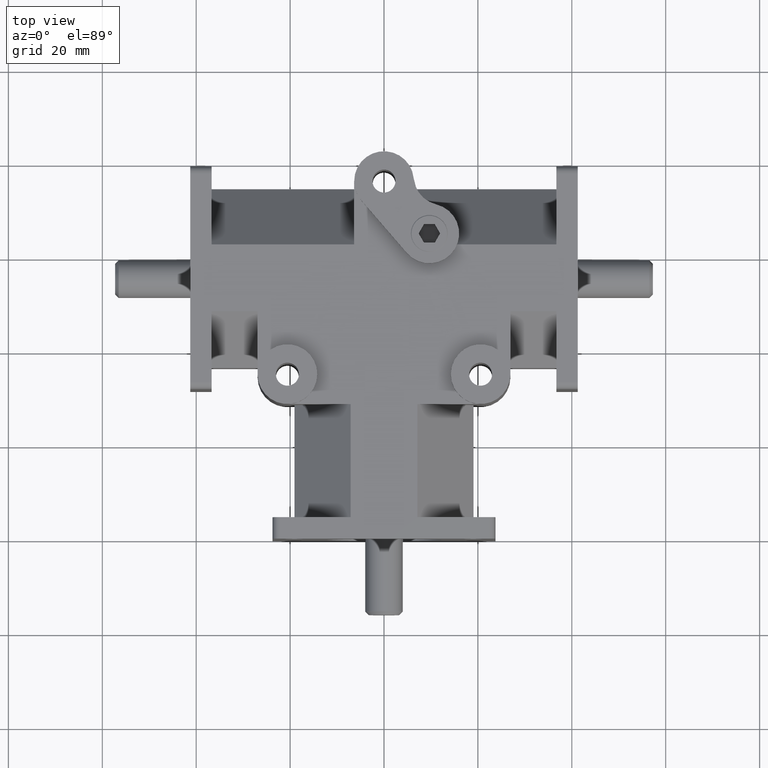
[diagram: clean part render]
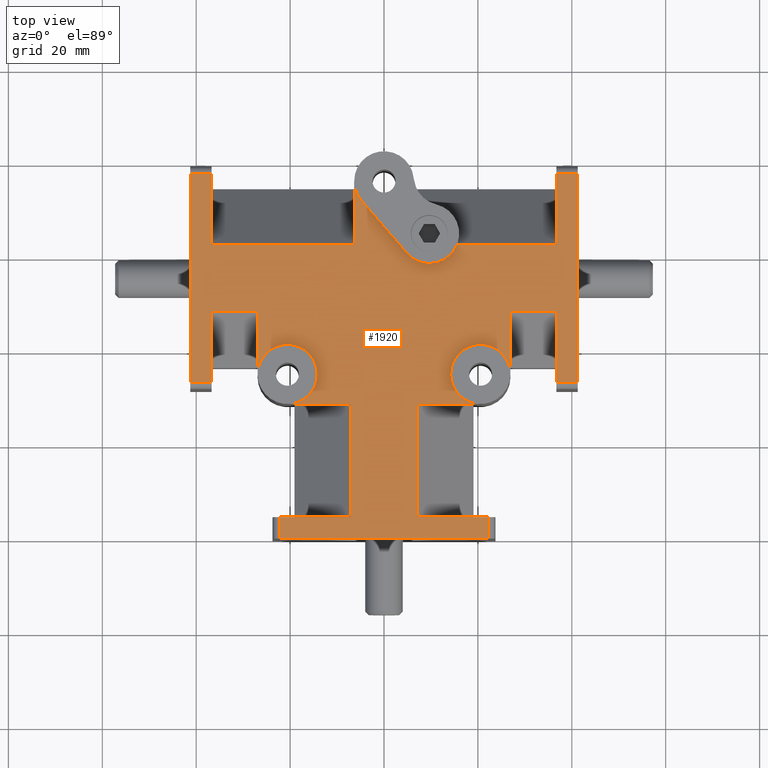
[diagram: same view with one face highlighted and labeled with its STEP entity id]
A machine part, top view. The second image highlights one B-rep face of the part: STEP entity #1920.
In plain terms, the highlighted planar face has unit normal (0, 0, 1).
Its self-contained STEP definition (entity closure, byte-faithful):
#19=VECTOR('',#2319,1.);
#24=VECTOR('',#2340,1.);
#29=VECTOR('',#2359,1.);
#32=VECTOR('',#2372,1.);
#37=VECTOR('',#2391,1.);
#38=VECTOR('',#2396,1.);
#42=VECTOR('',#2417,1.);
#50=VECTOR('',#2430,1.);
#56=VECTOR('',#2441,1.);
#58=VECTOR('',#2444,1.);
#59=VECTOR('',#2445,1.);
#60=VECTOR('',#2446,1.);
#61=VECTOR('',#2449,1.);
#62=VECTOR('',#2450,1.);
#63=VECTOR('',#2451,1.);
#64=VECTOR('',#2452,1.);
#65=VECTOR('',#2453,1.);
#66=VECTOR('',#2456,1.);
#67=VECTOR('',#2459,1.);
#68=VECTOR('',#2460,1.);
#69=VECTOR('',#2461,1.);
#70=VECTOR('',#2462,1.);
#71=VECTOR('',#2463,1.);
#72=VECTOR('',#2464,1.);
#73=VECTOR('',#2467,1.);
#74=VECTOR('',#2468,1.);
#75=VECTOR('',#2469,1.);
#176=LINE('',#2834,#19);
#181=LINE('',#2857,#24);
#186=LINE('',#2879,#29);
#189=LINE('',#2893,#32);
#194=LINE('',#2915,#37);
#195=LINE('',#2920,#38);
#199=LINE('',#2943,#42);
#207=LINE('',#2960,#50);
#213=LINE('',#2975,#56);
#215=LINE('',#2978,#58);
#216=LINE('',#2980,#59);
#217=LINE('',#2982,#60);
#218=LINE('',#2986,#61);
#219=LINE('',#2988,#62);
#220=LINE('',#2990,#63);
#221=LINE('',#2991,#64);
#222=LINE('',#2992,#65);
#223=LINE('',#2996,#66);
#224=LINE('',#3000,#67);
#225=LINE('',#3002,#68);
#226=LINE('',#3004,#69);
#227=LINE('',#3005,#70);
#228=LINE('',#3006,#71);
#229=LINE('',#3008,#72);
#230=LINE('',#3012,#73);
#231=LINE('',#3014,#74);
#232=LINE('',#3016,#75);
#351=PLANE('',#2097);
#431=VERTEX_POINT('',#2828);
#434=VERTEX_POINT('',#2833);
#444=VERTEX_POINT('',#2856);
#445=VERTEX_POINT('',#2858);
#451=VERTEX_POINT('',#2873);
#454=VERTEX_POINT('',#2878);
#460=VERTEX_POINT('',#2892);
#461=VERTEX_POINT('',#2894);
#467=VERTEX_POINT('',#2909);
#470=VERTEX_POINT('',#2914);
#472=VERTEX_POINT('',#2919);
#473=VERTEX_POINT('',#2921);
#488=VERTEX_POINT('',#2959);
#494=VERTEX_POINT('',#2974);
#495=VERTEX_POINT('',#2979);
#496=VERTEX_POINT('',#2981);
#497=VERTEX_POINT('',#2983);
#498=VERTEX_POINT('',#2985);
#499=VERTEX_POINT('',#2987);
#500=VERTEX_POINT('',#2989);
#501=VERTEX_POINT('',#2993);
#502=VERTEX_POINT('',#2995);
#503=VERTEX_POINT('',#2997);
#504=VERTEX_POINT('',#2999);
#505=VERTEX_POINT('',#3001);
#506=VERTEX_POINT('',#3003);
#507=VERTEX_POINT('',#3007);
#508=VERTEX_POINT('',#3009);
#509=VERTEX_POINT('',#3011);
#510=VERTEX_POINT('',#3013);
#511=VERTEX_POINT('',#3015);
#658=CIRCLE('',#2098,6.35);
#659=CIRCLE('',#2099,6.35);
#660=CIRCLE('',#2100,6.35);
#661=CIRCLE('',#2101,6.35);
#730=EDGE_CURVE('',#434,#431,#176,.T.);
#740=EDGE_CURVE('',#444,#445,#181,.T.);
#750=EDGE_CURVE('',#454,#451,#186,.T.);
#756=EDGE_CURVE('',#460,#461,#189,.T.);
#766=EDGE_CURVE('',#470,#467,#194,.T.);
#768=EDGE_CURVE('',#472,#473,#195,.T.);
#779=EDGE_CURVE('',#431,#444,#199,.T.);
#789=EDGE_CURVE('',#488,#454,#207,.T.);
#797=EDGE_CURVE('',#494,#470,#213,.T.);
#799=EDGE_CURVE('',#495,#434,#215,.T.);
#800=EDGE_CURVE('',#496,#495,#216,.T.);
#801=EDGE_CURVE('',#497,#496,#217,.T.);
#802=EDGE_CURVE('',#497,#498,#658,.T.);
#803=EDGE_CURVE('',#499,#498,#218,.T.);
#804=EDGE_CURVE('',#500,#499,#219,.T.);
#805=EDGE_CURVE('',#473,#500,#220,.T.);
#806=EDGE_CURVE('',#467,#472,#221,.T.);
#807=EDGE_CURVE('',#501,#494,#222,.T.);
#808=EDGE_CURVE('',#501,#502,#659,.T.);
#809=EDGE_CURVE('',#502,#503,#223,.T.);
#810=EDGE_CURVE('',#503,#504,#660,.T.);
#811=EDGE_CURVE('',#505,#504,#224,.T.);
#812=EDGE_CURVE('',#506,#505,#225,.T.);
#813=EDGE_CURVE('',#461,#506,#226,.T.);
#814=EDGE_CURVE('',#451,#460,#227,.T.);
#815=EDGE_CURVE('',#507,#488,#228,.T.);
#816=EDGE_CURVE('',#508,#507,#229,.T.);
#817=EDGE_CURVE('',#508,#509,#661,.T.);
#818=EDGE_CURVE('',#510,#509,#230,.T.);
#819=EDGE_CURVE('',#511,#510,#231,.T.);
#820=EDGE_CURVE('',#445,#511,#232,.T.);
#1092=ORIENTED_EDGE('',*,*,#730,.F.);
#1093=ORIENTED_EDGE('',*,*,#799,.F.);
#1094=ORIENTED_EDGE('',*,*,#800,.F.);
#1095=ORIENTED_EDGE('',*,*,#801,.F.);
#1096=ORIENTED_EDGE('',*,*,#802,.T.);
#1097=ORIENTED_EDGE('',*,*,#803,.F.);
#1098=ORIENTED_EDGE('',*,*,#804,.F.);
#1099=ORIENTED_EDGE('',*,*,#805,.F.);
#1100=ORIENTED_EDGE('',*,*,#768,.F.);
#1101=ORIENTED_EDGE('',*,*,#806,.F.);
#1102=ORIENTED_EDGE('',*,*,#766,.F.);
#1103=ORIENTED_EDGE('',*,*,#797,.F.);
#1104=ORIENTED_EDGE('',*,*,#807,.F.);
#1105=ORIENTED_EDGE('',*,*,#808,.T.);
#1106=ORIENTED_EDGE('',*,*,#809,.T.);
#1107=ORIENTED_EDGE('',*,*,#810,.T.);
#1108=ORIENTED_EDGE('',*,*,#811,.F.);
#1109=ORIENTED_EDGE('',*,*,#812,.F.);
#1110=ORIENTED_EDGE('',*,*,#813,.F.);
#1111=ORIENTED_EDGE('',*,*,#756,.F.);
#1112=ORIENTED_EDGE('',*,*,#814,.F.);
#1113=ORIENTED_EDGE('',*,*,#750,.F.);
#1114=ORIENTED_EDGE('',*,*,#789,.F.);
#1115=ORIENTED_EDGE('',*,*,#815,.F.);
#1116=ORIENTED_EDGE('',*,*,#816,.F.);
#1117=ORIENTED_EDGE('',*,*,#817,.T.);
#1118=ORIENTED_EDGE('',*,*,#818,.F.);
#1119=ORIENTED_EDGE('',*,*,#819,.F.);
#1120=ORIENTED_EDGE('',*,*,#820,.F.);
#1121=ORIENTED_EDGE('',*,*,#740,.F.);
#1122=ORIENTED_EDGE('',*,*,#779,.F.);
#1555=EDGE_LOOP('',(#1092,#1093,#1094,#1095,#1096,#1097,#1098,#1099,#1100,
#1101,#1102,#1103,#1104,#1105,#1106,#1107,#1108,#1109,#1110,#1111,#1112,
#1113,#1114,#1115,#1116,#1117,#1118,#1119,#1120,#1121,#1122));
#1754=FACE_BOUND('',#1555,.T.);
#1920=ADVANCED_FACE('',(#1754),#351,.T.);
#2097=AXIS2_PLACEMENT_3D('',#2977,#2443,$);
#2098=AXIS2_PLACEMENT_3D('',#2984,#2447,#2448);
#2099=AXIS2_PLACEMENT_3D('',#2994,#2454,#2455);
#2100=AXIS2_PLACEMENT_3D('',#2998,#2457,#2458);
#2101=AXIS2_PLACEMENT_3D('',#3010,#2465,#2466);
#2319=DIRECTION('',(0.,-1.,0.));
#2340=DIRECTION('',(0.,1.,0.));
#2359=DIRECTION('',(-1.,0.,0.));
#2372=DIRECTION('',(1.,0.,0.));
#2391=DIRECTION('',(1.,0.,0.));
#2396=DIRECTION('',(-1.,0.,0.));
#2417=DIRECTION('',(-1.,0.,0.));
#2430=DIRECTION('',(0.,-1.,0.));
#2441=DIRECTION('',(0.,1.,0.));
#2443=DIRECTION('',(0.,0.,1.));
#2444=DIRECTION('',(1.,0.,0.));
#2445=DIRECTION('',(0.,-1.,0.));
#2446=DIRECTION('',(-1.,0.,0.));
#2447=DIRECTION('',(0.,0.,-1.));
#2448=DIRECTION('',(6.35,0.,0.));
#2449=DIRECTION('',(0.,-1.,0.));
#2450=DIRECTION('',(-1.,0.,0.));
#2451=DIRECTION('',(0.,1.,0.));
#2452=DIRECTION('',(0.,-1.,0.));
#2453=DIRECTION('',(1.,0.,0.));
#2454=DIRECTION('',(0.,0.,-1.));
#2455=DIRECTION('',(6.35,0.,0.));
#2456=DIRECTION('',(-0.653619870346092,0.75682300776916,0.));
#2457=DIRECTION('',(0.,0.,-1.));
#2458=DIRECTION('',(6.35,0.,0.));
#2459=DIRECTION('',(0.,1.,0.));
#2460=DIRECTION('',(1.,0.,0.));
#2461=DIRECTION('',(0.,-1.,0.));
#2462=DIRECTION('',(0.,1.,0.));
#2463=DIRECTION('',(-1.,0.,0.));
#2464=DIRECTION('',(0.,1.,0.));
#2465=DIRECTION('',(0.,0.,-1.));
#2466=DIRECTION('',(6.35,0.,0.));
#2467=DIRECTION('',(-1.,0.,0.));
#2468=DIRECTION('',(0.,1.,0.));
#2469=DIRECTION('',(1.,0.,0.));
#2828=CARTESIAN_POINT('',(22.225,0.,17.526));
#2833=CARTESIAN_POINT('',(22.225,4.572,17.526));
#2834=CARTESIAN_POINT('',(22.225,23.6376233160517,17.526));
#2856=CARTESIAN_POINT('',(-22.225,0.,17.526));
#2857=CARTESIAN_POINT('',(-22.225,21.3516233160517,17.526));
#2858=CARTESIAN_POINT('',(-22.225,4.572,17.526));
#2873=CARTESIAN_POINT('',(-41.275,33.3375,17.526));
#2878=CARTESIAN_POINT('',(-36.703,33.3375,17.526));
#2879=CARTESIAN_POINT('',(-18.3515,33.3375,17.526));
#2892=CARTESIAN_POINT('',(-41.275,77.7875,17.526));
#2893=CARTESIAN_POINT('',(-20.6375,77.7875,17.526));
#2894=CARTESIAN_POINT('',(-36.703,77.7875,17.526));
#2909=CARTESIAN_POINT('',(41.275,77.7875,17.526));
#2914=CARTESIAN_POINT('',(36.703,77.7875,17.526));
#2915=CARTESIAN_POINT('',(18.3515,77.7875,17.526));
#2919=CARTESIAN_POINT('',(41.275,33.3375,17.526));
#2920=CARTESIAN_POINT('',(20.6375,33.3375,17.526));
#2921=CARTESIAN_POINT('',(36.703,33.3375,17.526));
#2943=CARTESIAN_POINT('',(23.749,0.,17.526));
#2959=CARTESIAN_POINT('',(-36.703,48.4505,17.526));
#2960=CARTESIAN_POINT('',(-36.703,31.8135,17.526));
#2974=CARTESIAN_POINT('',(36.703,62.6745,17.526));
#2975=CARTESIAN_POINT('',(36.703,74.6125,17.526));
#2977=CARTESIAN_POINT('',(-3.41480316246034E-016,42.7032466321034,17.526));
#2978=CARTESIAN_POINT('',(23.749,4.572,17.526));
#2979=CARTESIAN_POINT('',(7.112,4.572,17.526));
#2980=CARTESIAN_POINT('',(7.112,35.5756233160517,17.526));
#2981=CARTESIAN_POINT('',(7.112,28.6385,17.526));
#2982=CARTESIAN_POINT('',(10.287,28.6385,17.526));
#2983=CARTESIAN_POINT('',(20.574,28.6385,17.526));
#2984=CARTESIAN_POINT('',(20.574,34.9885,17.526));
#2985=CARTESIAN_POINT('',(26.924,34.9885,17.526));
#2986=CARTESIAN_POINT('',(26.924,34.9885,17.526));
#2987=CARTESIAN_POINT('',(26.924,48.4505,17.526));
#2988=CARTESIAN_POINT('',(18.3515,48.4505,17.526));
#2989=CARTESIAN_POINT('',(36.703,48.4505,17.526));
#2990=CARTESIAN_POINT('',(36.703,37.3536233160517,17.526));
#2991=CARTESIAN_POINT('',(41.275,31.8135,17.526));
#2992=CARTESIAN_POINT('',(3.175,62.6745,17.526));
#2993=CARTESIAN_POINT('',(15.5762471251628,62.6745,17.526));
#2994=CARTESIAN_POINT('',(9.652,64.9605,17.526));
#2995=CARTESIAN_POINT('',(4.84617390066584,60.8100138233023,17.526));
#2996=CARTESIAN_POINT('',(8.24234603544737,56.877603983029,17.526));
#2997=CARTESIAN_POINT('',(-4.80582609933417,71.9860138233023,17.526));
#2998=CARTESIAN_POINT('',(0.,76.1365,17.526));
#2999=CARTESIAN_POINT('',(-6.35,76.1365,17.526));
#3000=CARTESIAN_POINT('',(-6.35,74.6125,17.526));
#3001=CARTESIAN_POINT('',(-6.35,62.6745,17.526));
#3002=CARTESIAN_POINT('',(-18.3515,62.6745,17.526));
#3003=CARTESIAN_POINT('',(-36.703,62.6745,17.526));
#3004=CARTESIAN_POINT('',(-36.703,61.1026233160517,17.526));
#3005=CARTESIAN_POINT('',(-41.275,31.8135,17.526));
#3006=CARTESIAN_POINT('',(-13.462,48.4505,17.526));
#3007=CARTESIAN_POINT('',(-26.924,48.4505,17.526));
#3008=CARTESIAN_POINT('',(-26.924,38.9411233160517,17.526));
#3009=CARTESIAN_POINT('',(-26.924,34.9885,17.526));
#3010=CARTESIAN_POINT('',(-20.574,34.9885,17.526));
#3011=CARTESIAN_POINT('',(-20.574,28.6385,17.526));
#3012=CARTESIAN_POINT('',(-19.05,28.6385,17.526));
#3013=CARTESIAN_POINT('',(-7.112,28.6385,17.526));
#3014=CARTESIAN_POINT('',(-7.112,23.6376233160517,17.526));
#3015=CARTESIAN_POINT('',(-7.112,4.572,17.526));
#3016=CARTESIAN_POINT('',(-11.8745,4.572,17.526));